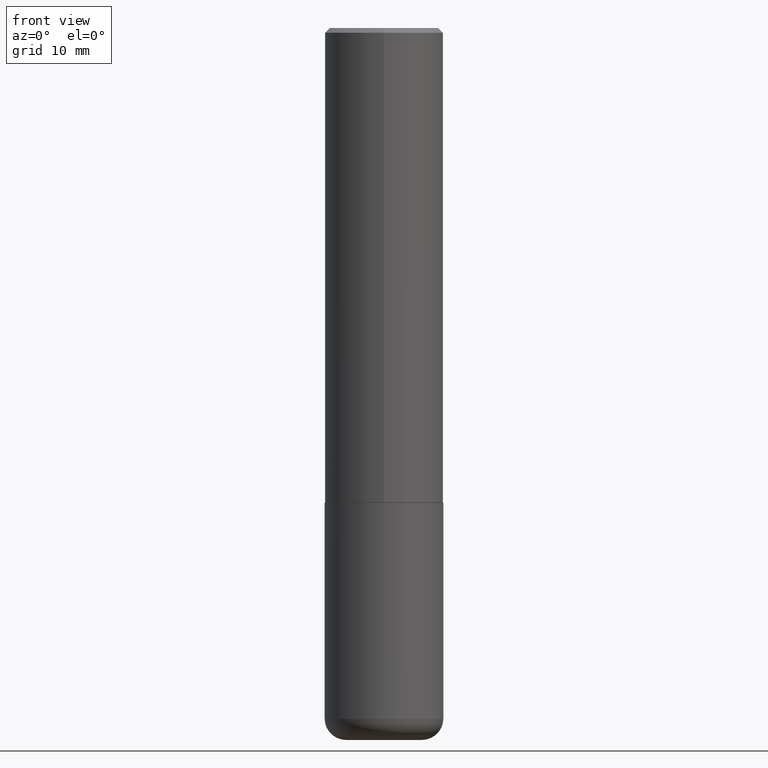
[diagram: clean part render]
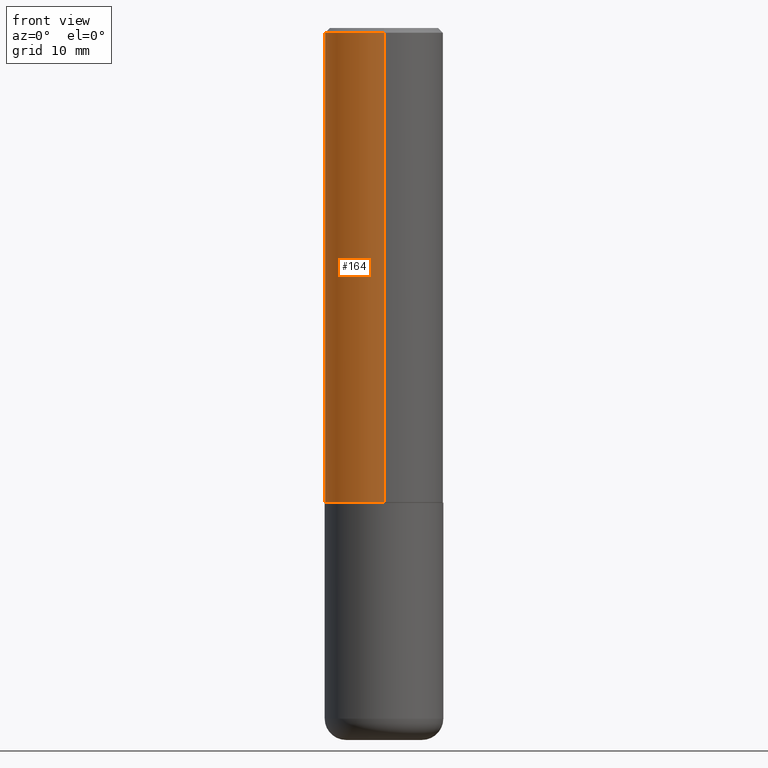
[diagram: same view with one face highlighted and labeled with its STEP entity id]
A machine part, front view. The second image highlights one B-rep face of the part: STEP entity #164.
In plain terms, the highlighted cylindrical surface (partial cylindrical patch) has radius 6.35 mm, axis along (-0, 0, 1).
Its self-contained STEP definition (entity closure, byte-faithful):
#25 = DIRECTION ( 'NONE',  ( -2.444412496635560889E-29, 3.492994034239543658E-15, 1.000000000000000000 ) ) ;
#29 = VECTOR ( 'NONE', #163, 39.37007874015748143 ) ;
#33 = CARTESIAN_POINT ( 'NONE',  ( 4.888824993271135161E-31, -6.985988068479105855E-17, -0.02000000000000005593 ) ) ;
#39 = EDGE_LOOP ( 'NONE', ( #169, #347, #247, #69 ) ) ;
#51 = EDGE_CURVE ( 'NONE', #352, #192, #198, .T. ) ;
#52 = DIRECTION ( 'NONE',  ( -2.444412496635560889E-29, 3.492994034239543658E-15, 1.000000000000000000 ) ) ;
#55 = CARTESIAN_POINT ( 'NONE',  ( 0.000000000000000000, 0.000000000000000000, 0.000000000000000000 ) ) ;
#69 = ORIENTED_EDGE ( 'NONE', *, *, #248, .F. ) ;
#77 = AXIS2_PLACEMENT_3D ( 'NONE', #33, #52, #320 ) ;
#86 = DIRECTION ( 'NONE',  ( -2.444412496635560889E-29, 3.492994034239543658E-15, 1.000000000000000000 ) ) ;
#87 = CIRCLE ( 'NONE', #171, 0.2500000000000002776 ) ;
#98 = CARTESIAN_POINT ( 'NONE',  ( -1.745740669421519543E-15, -0.2500000000000072164, -1.998999999999999444 ) ) ;
#117 = EDGE_CURVE ( 'NONE', #362, #409, #298, .T. ) ;
#118 = DIRECTION ( 'NONE',  ( -6.982962677686266711E-15, -1.000000000000000000, 3.492994034239544053E-15 ) ) ;
#163 = DIRECTION ( 'NONE',  ( -2.444412496635561170E-29, 3.492994034239543658E-15, 1.000000000000000000 ) ) ;
#164 = ADVANCED_FACE ( 'NONE', ( #350 ), #218, .T. ) ;
#169 = ORIENTED_EDGE ( 'NONE', *, *, #117, .F. ) ;
#171 = AXIS2_PLACEMENT_3D ( 'NONE', #222, #25, #323 ) ;
#192 = VERTEX_POINT ( 'NONE', #357 ) ;
#198 = LINE ( 'NONE', #305, #326 ) ;
#199 = CARTESIAN_POINT ( 'NONE',  ( 1.776356839400251254E-15, 0.2500000000000001110, -8.732485085598864076E-16 ) ) ;
#218 = CYLINDRICAL_SURFACE ( 'NONE', #399, 0.2500000000000001110 ) ;
#222 = CARTESIAN_POINT ( 'NONE',  ( 4.886380580774486722E-29, -6.982495074444848074E-15, -1.999000000000000110 ) ) ;
#229 = DIRECTION ( 'NONE',  ( -2.444412496635561170E-29, 3.492994034239543658E-15, 1.000000000000000000 ) ) ;
#231 = EDGE_CURVE ( 'NONE', #362, #352, #87, .T. ) ;
#247 = ORIENTED_EDGE ( 'NONE', *, *, #51, .T. ) ;
#248 = EDGE_CURVE ( 'NONE', #409, #192, #405, .T. ) ;
#266 = CARTESIAN_POINT ( 'NONE',  ( 1.776356839400276103E-15, 0.2499999999999933109, -1.999000000000000998 ) ) ;
#298 = LINE ( 'NONE', #199, #29 ) ;
#305 = CARTESIAN_POINT ( 'NONE',  ( -1.745740669421567467E-15, -0.2500000000000001110, 8.732485085598864076E-16 ) ) ;
#308 = CARTESIAN_POINT ( 'NONE',  ( 1.745740669421566875E-15, 0.2499999999999999167, -0.02000000000000093023 ) ) ;
#320 = DIRECTION ( 'NONE',  ( -6.982962677686265922E-15, -1.000000000000000000, 3.500180241882337261E-15 ) ) ;
#323 = DIRECTION ( 'NONE',  ( -6.982962677686265922E-15, -1.000000000000000000, 3.278217592397112312E-15 ) ) ;
#326 = VECTOR ( 'NONE', #229, 39.37007874015748143 ) ;
#347 = ORIENTED_EDGE ( 'NONE', *, *, #231, .T. ) ;
#350 = FACE_OUTER_BOUND ( 'NONE', #39, .T. ) ;
#352 = VERTEX_POINT ( 'NONE', #98 ) ;
#357 = CARTESIAN_POINT ( 'NONE',  ( -1.715124499442882299E-15, -0.2500000000000000555, -0.01999999999999918163 ) ) ;
#362 = VERTEX_POINT ( 'NONE', #266 ) ;
#399 = AXIS2_PLACEMENT_3D ( 'NONE', #55, #86, #118 ) ;
#405 = CIRCLE ( 'NONE', #77, 0.2500000000000000000 ) ;
#409 = VERTEX_POINT ( 'NONE', #308 ) ;